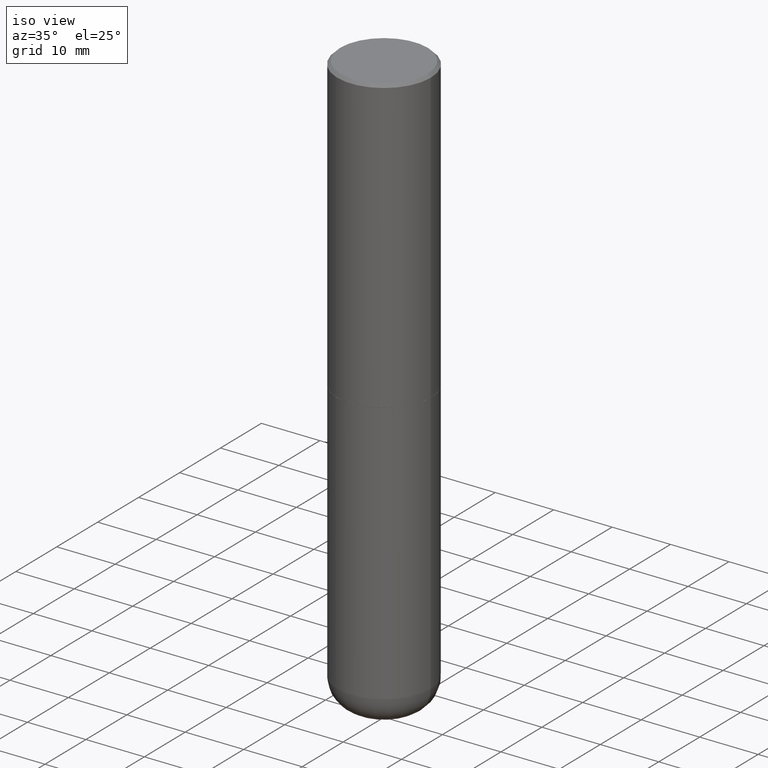
[diagram: clean part render]
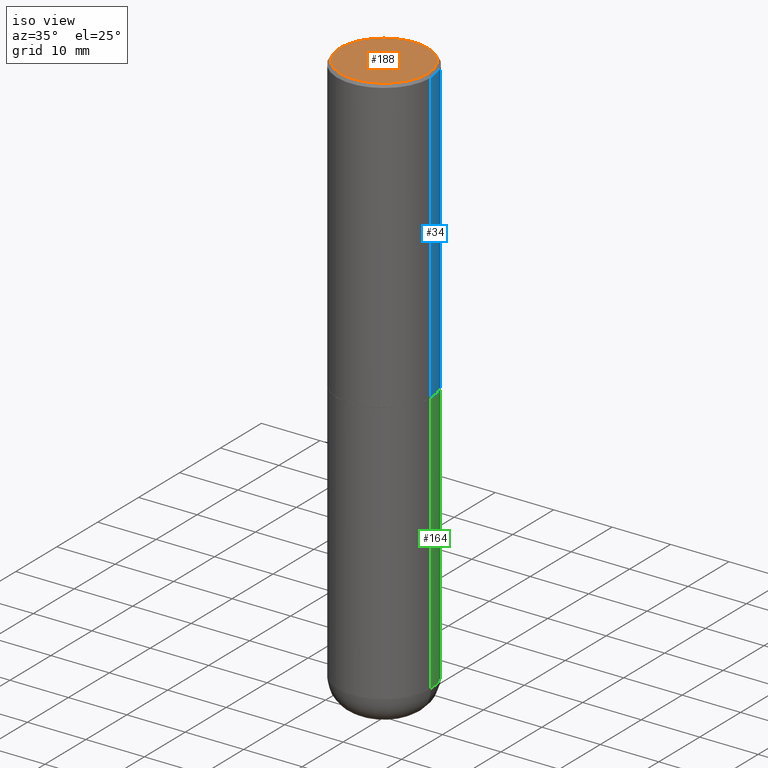
[diagram: same view with three faces highlighted in distinct colors, each labeled with its STEP entity id]
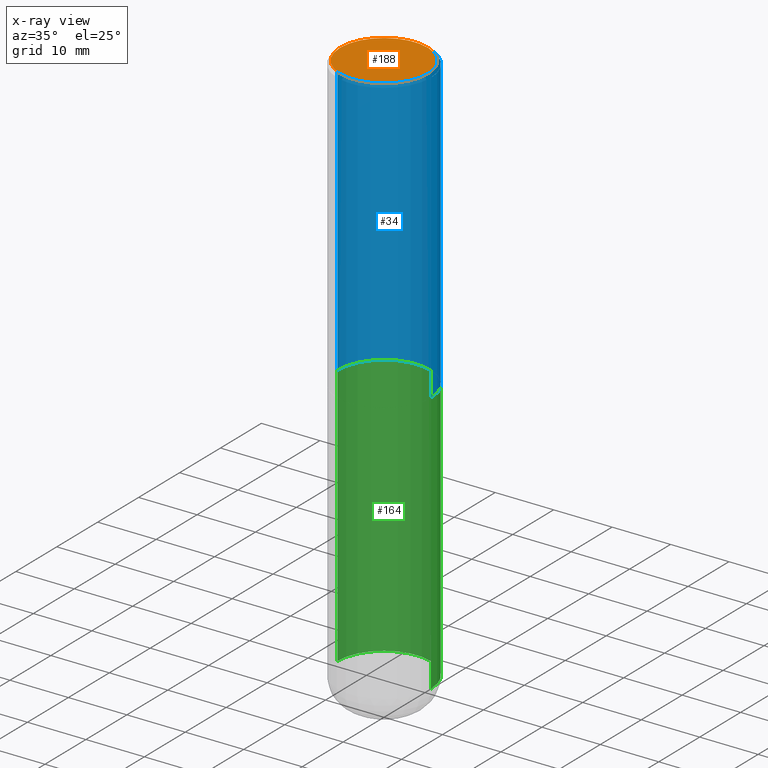
[diagram: x-ray of the same camera — body ghosted, the three highlighted faces saturated]
A machine part, iso view with three faces highlighted in distinct colors.
The next image is the same camera in x-ray (body ghosted, the three faces saturated) — at least one of them is partly hidden behind the body in this view.
Their STEP definitions:

[orange] entity #188 — the highlighted planar face has unit normal (0, -0, -1).
#10 = AXIS2_PLACEMENT_3D ( 'NONE', #411, #251, #190 ) ;
#15 = DIRECTION ( 'NONE',  ( 2.438088387897960049E-29, -3.491481338843145188E-15, -1.000000000000000000 ) ) ;
#18 = CARTESIAN_POINT ( 'NONE',  ( -7.306959900346538153E-46, 1.043240219266313067E-31, 2.987958743070287587E-17 ) ) ;
#19 = DIRECTION ( 'NONE',  ( 1.000000000000000000, -6.982962677686267499E-15, 4.876696176320539145E-29 ) ) ;
#47 = PLANE ( 'NONE',  #393 ) ;
#99 = VERTEX_POINT ( 'NONE', #200 ) ;
#102 = AXIS2_PLACEMENT_3D ( 'NONE', #18, #371, #19 ) ;
#119 = CARTESIAN_POINT ( 'NONE',  ( 0.2949499999999999345, -2.127023677808860075E-15, 2.987958743071751910E-17 ) ) ;
#180 = FACE_OUTER_BOUND ( 'NONE', #320, .T. ) ;
#188 = ADVANCED_FACE ( 'NONE', ( #180 ), #47, .F. ) ;
#190 = DIRECTION ( 'NONE',  ( 1.000000000000000000, -6.982962677686267499E-15, 4.876696176320539145E-29 ) ) ;
#194 = EDGE_CURVE ( 'NONE', #99, #256, #362, .T. ) ;
#200 = CARTESIAN_POINT ( 'NONE',  ( -0.2949499999999999345, 2.094539655171995318E-15, 2.987958743068835590E-17 ) ) ;
#207 = CARTESIAN_POINT ( 'NONE',  ( 2.059624841783564063E-15, 0.2949499999999999345, -1.014872627176434088E-15 ) ) ;
#230 = ORIENTED_EDGE ( 'NONE', *, *, #194, .T. ) ;
#251 = DIRECTION ( 'NONE',  ( -2.445468806185136597E-29, 3.491481338843145583E-15, 1.000000000000000000 ) ) ;
#256 = VERTEX_POINT ( 'NONE', #119 ) ;
#259 = ORIENTED_EDGE ( 'NONE', *, *, #395, .T. ) ;
#262 = CIRCLE ( 'NONE', #10, 0.2949499999999999345 ) ;
#276 = DIRECTION ( 'NONE',  ( -1.000000000000000000, 6.982962677686265922E-15, -4.876176775795935793E-29 ) ) ;
#320 = EDGE_LOOP ( 'NONE', ( #230, #259 ) ) ;
#362 = CIRCLE ( 'NONE', #102, 0.2949499999999999345 ) ;
#371 = DIRECTION ( 'NONE',  ( -2.445468806185136597E-29, 3.491481338843145583E-15, 1.000000000000000000 ) ) ;
#393 = AXIS2_PLACEMENT_3D ( 'NONE', #207, #15, #276 ) ;
#395 = EDGE_CURVE ( 'NONE', #256, #99, #262, .T. ) ;
#411 = CARTESIAN_POINT ( 'NONE',  ( -7.306959900346538153E-46, 1.043240219266313067E-31, 2.987958743070287587E-17 ) ) ;

[blue] entity #34 — the highlighted cylindrical surface (partial cylindrical patch) has radius 7.9997 mm, axis along (-0, 0, 1).
#32 = ORIENTED_EDGE ( 'NONE', *, *, #174, .F. ) ;
#34 = ADVANCED_FACE ( 'NONE', ( #299 ), #307, .T. ) ;
#37 = DIRECTION ( 'NONE',  ( -2.445468806185136597E-29, 3.491481338843145583E-15, 1.000000000000000000 ) ) ;
#49 = CARTESIAN_POINT ( 'NONE',  ( 4.890937612370289799E-31, -6.982962677686315028E-17, -0.02000000000000006981 ) ) ;
#56 = DIRECTION ( 'NONE',  ( -2.445468806185136877E-29, 3.491481338843145188E-15, 1.000000000000000000 ) ) ;
#69 = EDGE_CURVE ( 'NONE', #327, #125, #410, .T. ) ;
#74 = CARTESIAN_POINT ( 'NONE',  ( 4.811459876169256792E-29, -6.869489534173889489E-15, -1.967500000000000249 ) ) ;
#85 = VECTOR ( 'NONE', #56, 39.37007874015748143 ) ;
#97 = ORIENTED_EDGE ( 'NONE', *, *, #372, .T. ) ;
#110 = DIRECTION ( 'NONE',  ( 1.000000000000000000, -6.982962677686267499E-15, 0.000000000000000000 ) ) ;
#125 = VERTEX_POINT ( 'NONE', #335 ) ;
#126 = ORIENTED_EDGE ( 'NONE', *, *, #245, .F. ) ;
#127 = CARTESIAN_POINT ( 'NONE',  ( -0.3149500000000001743, 2.237854346276436774E-15, -1.549218606675783237E-29 ) ) ;
#144 = CARTESIAN_POINT ( 'NONE',  ( 0.3149500000000001743, -2.199284095337290660E-15, 1.535751875536930690E-29 ) ) ;
#174 = EDGE_CURVE ( 'NONE', #287, #186, #316, .T. ) ;
#176 = AXIS2_PLACEMENT_3D ( 'NONE', #205, #196, #331 ) ;
#186 = VERTEX_POINT ( 'NONE', #214 ) ;
#196 = DIRECTION ( 'NONE',  ( -2.445468806185136597E-29, 3.491481338843145583E-15, 1.000000000000000000 ) ) ;
#205 = CARTESIAN_POINT ( 'NONE',  ( 0.000000000000000000, 0.000000000000000000, 0.000000000000000000 ) ) ;
#211 = LINE ( 'NONE', #144, #269 ) ;
#213 = DIRECTION ( 'NONE',  ( -2.445468806185136597E-29, 3.491481338843145583E-15, 1.000000000000000000 ) ) ;
#214 = CARTESIAN_POINT ( 'NONE',  ( -0.3149500000000000077, 2.129454468560426573E-15, -0.02000000000000006981 ) ) ;
#245 = EDGE_CURVE ( 'NONE', #327, #287, #211, .T. ) ;
#260 = CARTESIAN_POINT ( 'NONE',  ( 0.3149500000000002853, -9.068773629511181726E-15, -1.967500000000000249 ) ) ;
#269 = VECTOR ( 'NONE', #406, 39.37007874015748143 ) ;
#279 = DIRECTION ( 'NONE',  ( 1.000000000000000000, -6.982962677686266711E-15, 0.000000000000000000 ) ) ;
#284 = CARTESIAN_POINT ( 'NONE',  ( 0.3149500000000000077, -2.230543471175007450E-15, -0.02000000000000006981 ) ) ;
#286 = LINE ( 'NONE', #127, #85 ) ;
#287 = VERTEX_POINT ( 'NONE', #284 ) ;
#289 = AXIS2_PLACEMENT_3D ( 'NONE', #74, #37, #110 ) ;
#299 = FACE_OUTER_BOUND ( 'NONE', #353, .T. ) ;
#307 = CYLINDRICAL_SURFACE ( 'NONE', #176, 0.3149500000000001743 ) ;
#316 = CIRCLE ( 'NONE', #388, 0.3149500000000000077 ) ;
#327 = VERTEX_POINT ( 'NONE', #260 ) ;
#331 = DIRECTION ( 'NONE',  ( 1.000000000000000000, -6.982962677686265922E-15, 4.876176775795935232E-29 ) ) ;
#335 = CARTESIAN_POINT ( 'NONE',  ( -0.3149500000000002853, -1.231805234198937253E-15, -1.967500000000000249 ) ) ;
#353 = EDGE_LOOP ( 'NONE', ( #390, #97, #32, #126 ) ) ;
#372 = EDGE_CURVE ( 'NONE', #125, #186, #286, .T. ) ;
#388 = AXIS2_PLACEMENT_3D ( 'NONE', #49, #213, #279 ) ;
#390 = ORIENTED_EDGE ( 'NONE', *, *, #69, .T. ) ;
#406 = DIRECTION ( 'NONE',  ( -2.445468806185136877E-29, 3.491481338843145188E-15, 1.000000000000000000 ) ) ;
#410 = CIRCLE ( 'NONE', #289, 0.3149500000000002853 ) ;

[green] entity #164 — the highlighted cylindrical surface (partial cylindrical patch) has radius 7.9997 mm, axis along (-0, 0, 1).
#5 = EDGE_CURVE ( 'NONE', #242, #30, #359, .T. ) ;
#30 = VERTEX_POINT ( 'NONE', #365 ) ;
#33 = VERTEX_POINT ( 'NONE', #392 ) ;
#46 = DIRECTION ( 'NONE',  ( 1.000000000000000000, -6.982962677686266711E-15, 4.876176775795936353E-29 ) ) ;
#52 = VECTOR ( 'NONE', #227, 39.37007874015748143 ) ;
#83 = CARTESIAN_POINT ( 'NONE',  ( 0.000000000000000000, 0.000000000000000000, 0.000000000000000000 ) ) ;
#90 = VERTEX_POINT ( 'NONE', #271 ) ;
#117 = CIRCLE ( 'NONE', #159, 0.3149500000000000077 ) ;
#120 = CARTESIAN_POINT ( 'NONE',  ( 9.146297882013029477E-29, -1.305848935540725085E-14, -3.740100000000000424 ) ) ;
#128 = AXIS2_PLACEMENT_3D ( 'NONE', #83, #139, #46 ) ;
#139 = DIRECTION ( 'NONE',  ( -2.445468806185136597E-29, 3.491481338843145583E-15, 1.000000000000000000 ) ) ;
#148 = DIRECTION ( 'NONE',  ( 1.000000000000000000, -6.982962677686269866E-15, 0.000000000000000000 ) ) ;
#157 = VECTOR ( 'NONE', #165, 39.37007874015748143 ) ;
#159 = AXIS2_PLACEMENT_3D ( 'NONE', #215, #386, #148 ) ;
#164 = ADVANCED_FACE ( 'NONE', ( #311 ), #342, .T. ) ;
#165 = DIRECTION ( 'NONE',  ( -2.445468806185136877E-29, 3.491481338843145188E-15, 1.000000000000000000 ) ) ;
#185 = ORIENTED_EDGE ( 'NONE', *, *, #302, .F. ) ;
#215 = CARTESIAN_POINT ( 'NONE',  ( 4.813905344975442395E-29, -6.872981015512733285E-15, -1.968500000000000361 ) ) ;
#223 = CARTESIAN_POINT ( 'NONE',  ( -0.3149500000000000077, 2.237854346276435590E-15, -1.549218606675782676E-29 ) ) ;
#224 = ORIENTED_EDGE ( 'NONE', *, *, #318, .T. ) ;
#227 = DIRECTION ( 'NONE',  ( -2.445468806185136877E-29, 3.491481338843145188E-15, 1.000000000000000000 ) ) ;
#228 = EDGE_LOOP ( 'NONE', ( #224, #232, #185, #265 ) ) ;
#232 = ORIENTED_EDGE ( 'NONE', *, *, #413, .T. ) ;
#242 = VERTEX_POINT ( 'NONE', #375 ) ;
#265 = ORIENTED_EDGE ( 'NONE', *, *, #5, .F. ) ;
#271 = CARTESIAN_POINT ( 'NONE',  ( -0.3149500000000000077, -7.727880839183556085E-15, -1.968500000000000361 ) ) ;
#302 = EDGE_CURVE ( 'NONE', #30, #90, #117, .T. ) ;
#311 = FACE_OUTER_BOUND ( 'NONE', #228, .T. ) ;
#318 = EDGE_CURVE ( 'NONE', #242, #33, #400, .T. ) ;
#319 = DIRECTION ( 'NONE',  ( -2.445468806185136597E-29, 3.491481338843145583E-15, 1.000000000000000000 ) ) ;
#338 = AXIS2_PLACEMENT_3D ( 'NONE', #120, #319, #352 ) ;
#342 = CYLINDRICAL_SURFACE ( 'NONE', #128, 0.3149500000000000077 ) ;
#352 = DIRECTION ( 'NONE',  ( 1.000000000000000000, -6.982962677686263555E-15, 0.000000000000000000 ) ) ;
#359 = LINE ( 'NONE', #369, #157 ) ;
#365 = CARTESIAN_POINT ( 'NONE',  ( 0.3149500000000000077, -9.072265110850023156E-15, -1.968500000000000361 ) ) ;
#369 = CARTESIAN_POINT ( 'NONE',  ( 0.3149500000000000077, -2.199284095337289871E-15, 1.535751875536930130E-29 ) ) ;
#375 = CARTESIAN_POINT ( 'NONE',  ( 0.3149499999999999522, -1.525777345074454073E-14, -3.740100000000000424 ) ) ;
#386 = DIRECTION ( 'NONE',  ( -2.445468806185136597E-29, 3.491481338843145583E-15, 1.000000000000000000 ) ) ;
#389 = LINE ( 'NONE', #223, #52 ) ;
#392 = CARTESIAN_POINT ( 'NONE',  ( -0.3149499999999999522, -1.082063500913081645E-14, -3.740100000000000424 ) ) ;
#400 = CIRCLE ( 'NONE', #338, 0.3149500000000000077 ) ;
#413 = EDGE_CURVE ( 'NONE', #33, #90, #389, .T. ) ;